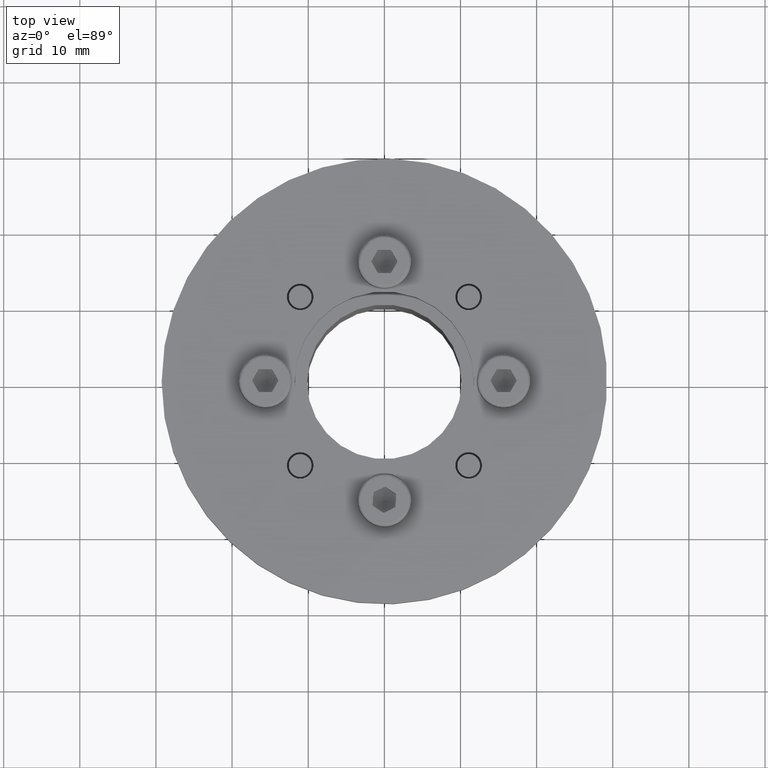
[diagram: clean part render]
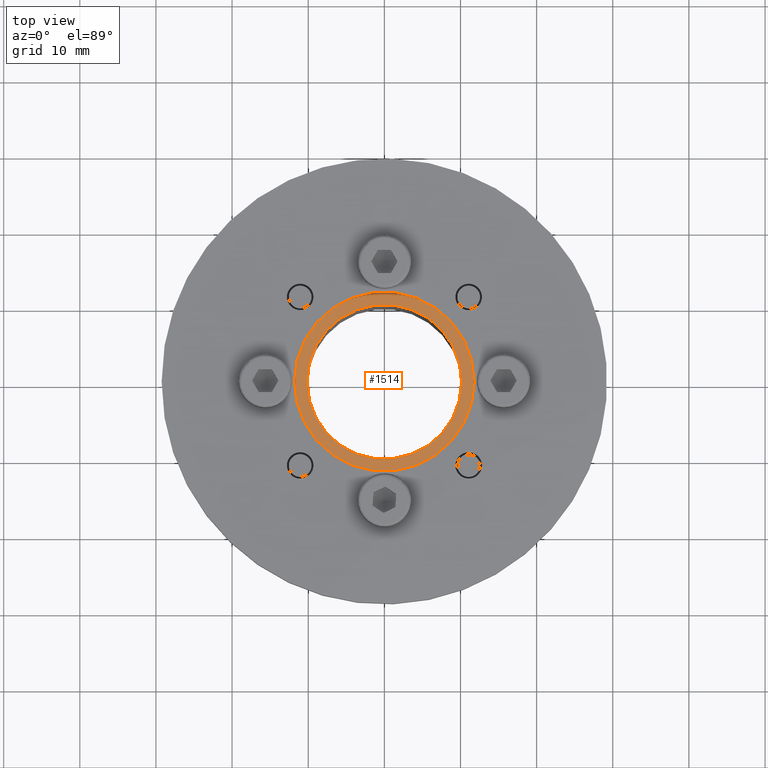
[diagram: same view with one face highlighted and labeled with its STEP entity id]
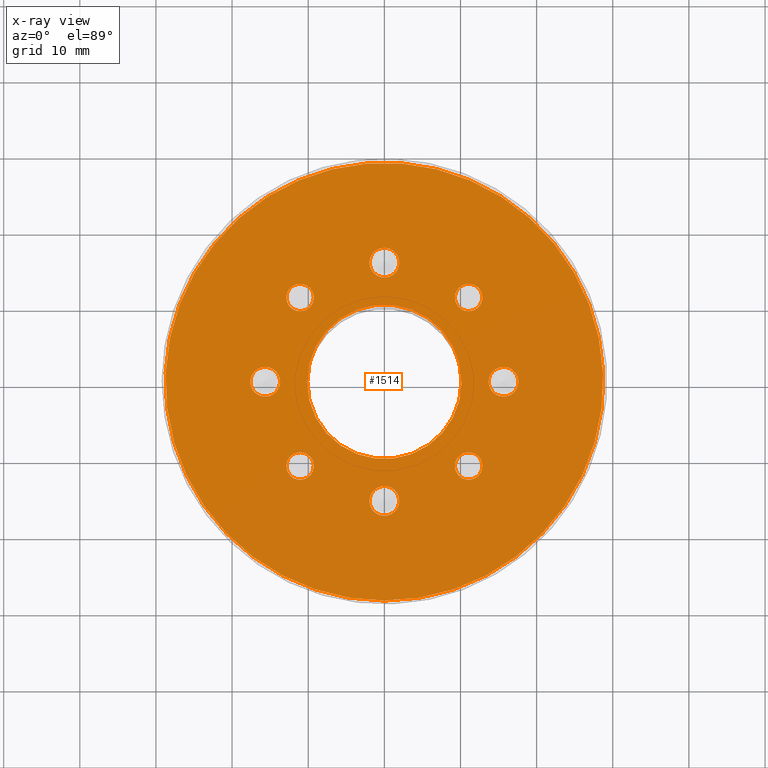
[diagram: x-ray of the same camera — body ghosted, the highlighted face saturated]
A machine part, top view. The second image highlights one B-rep face of the part: STEP entity #1514.
The next image is the same camera in x-ray: the body ghosted, the highlighted face saturated — about 0% of this face is hidden behind the body in this view.
In plain terms, the highlighted planar face has unit normal (0, -0, -1).
Its self-contained STEP definition (entity closure, byte-faithful):
#109=FACE_BOUND('',#412,.T.);
#110=FACE_BOUND('',#413,.T.);
#111=FACE_BOUND('',#414,.T.);
#112=FACE_BOUND('',#415,.T.);
#113=FACE_BOUND('',#416,.T.);
#114=FACE_BOUND('',#417,.T.);
#115=FACE_BOUND('',#418,.T.);
#116=FACE_BOUND('',#419,.T.);
#117=FACE_BOUND('',#420,.T.);
#155=PLANE('',#1748);
#321=FACE_OUTER_BOUND('',#411,.T.);
#411=EDGE_LOOP('',(#1105));
#412=EDGE_LOOP('',(#1106,#1107));
#413=EDGE_LOOP('',(#1108));
#414=EDGE_LOOP('',(#1109));
#415=EDGE_LOOP('',(#1110));
#416=EDGE_LOOP('',(#1111));
#417=EDGE_LOOP('',(#1112));
#418=EDGE_LOOP('',(#1113));
#419=EDGE_LOOP('',(#1114,#1115));
#420=EDGE_LOOP('',(#1116,#1117));
#552=CIRCLE('',#1745,1.8);
#553=CIRCLE('',#1746,1.8);
#555=CIRCLE('',#1749,28.75);
#556=CIRCLE('',#1750,1.8);
#557=CIRCLE('',#1751,1.8);
#558=CIRCLE('',#1752,1.8);
#559=CIRCLE('',#1753,1.95);
#560=CIRCLE('',#1754,1.95);
#561=CIRCLE('',#1755,1.95);
#562=CIRCLE('',#1756,1.95);
#563=CIRCLE('',#1757,10.15);
#564=CIRCLE('',#1758,1.8);
#565=CIRCLE('',#1759,1.8);
#700=VERTEX_POINT('',#2584);
#701=VERTEX_POINT('',#2586);
#702=VERTEX_POINT('',#2591);
#703=VERTEX_POINT('',#2593);
#704=VERTEX_POINT('',#2594);
#705=VERTEX_POINT('',#2597);
#706=VERTEX_POINT('',#2599);
#707=VERTEX_POINT('',#2601);
#708=VERTEX_POINT('',#2603);
#709=VERTEX_POINT('',#2605);
#710=VERTEX_POINT('',#2607);
#711=VERTEX_POINT('',#2609);
#712=VERTEX_POINT('',#2610);
#860=EDGE_CURVE('',#700,#701,#552,.T.);
#861=EDGE_CURVE('',#701,#700,#553,.T.);
#863=EDGE_CURVE('',#702,#702,#555,.T.);
#864=EDGE_CURVE('',#703,#704,#556,.T.);
#865=EDGE_CURVE('',#704,#703,#557,.T.);
#866=EDGE_CURVE('',#705,#705,#558,.T.);
#867=EDGE_CURVE('',#706,#706,#559,.T.);
#868=EDGE_CURVE('',#707,#707,#560,.T.);
#869=EDGE_CURVE('',#708,#708,#561,.T.);
#870=EDGE_CURVE('',#709,#709,#562,.T.);
#871=EDGE_CURVE('',#710,#710,#563,.F.);
#872=EDGE_CURVE('',#711,#712,#564,.T.);
#873=EDGE_CURVE('',#712,#711,#565,.T.);
#1105=ORIENTED_EDGE('',*,*,#863,.T.);
#1106=ORIENTED_EDGE('',*,*,#864,.F.);
#1107=ORIENTED_EDGE('',*,*,#865,.F.);
#1108=ORIENTED_EDGE('',*,*,#866,.F.);
#1109=ORIENTED_EDGE('',*,*,#867,.T.);
#1110=ORIENTED_EDGE('',*,*,#868,.T.);
#1111=ORIENTED_EDGE('',*,*,#869,.T.);
#1112=ORIENTED_EDGE('',*,*,#870,.T.);
#1113=ORIENTED_EDGE('',*,*,#871,.T.);
#1114=ORIENTED_EDGE('',*,*,#872,.F.);
#1115=ORIENTED_EDGE('',*,*,#873,.F.);
#1116=ORIENTED_EDGE('',*,*,#861,.F.);
#1117=ORIENTED_EDGE('',*,*,#860,.F.);
#1514=ADVANCED_FACE('',(#321,#109,#110,#111,#112,#113,#114,#115,#116,#117),
#155,.F.);
#1745=AXIS2_PLACEMENT_3D('',#2587,#2046,#2047);
#1746=AXIS2_PLACEMENT_3D('',#2588,#2048,#2049);
#1748=AXIS2_PLACEMENT_3D('',#2590,#2052,#2053);
#1749=AXIS2_PLACEMENT_3D('',#2592,#2054,#2055);
#1750=AXIS2_PLACEMENT_3D('',#2595,#2056,#2057);
#1751=AXIS2_PLACEMENT_3D('',#2596,#2058,#2059);
#1752=AXIS2_PLACEMENT_3D('',#2598,#2060,#2061);
#1753=AXIS2_PLACEMENT_3D('',#2600,#2062,#2063);
#1754=AXIS2_PLACEMENT_3D('',#2602,#2064,#2065);
#1755=AXIS2_PLACEMENT_3D('',#2604,#2066,#2067);
#1756=AXIS2_PLACEMENT_3D('',#2606,#2068,#2069);
#1757=AXIS2_PLACEMENT_3D('',#2608,#2070,#2071);
#1758=AXIS2_PLACEMENT_3D('',#2611,#2072,#2073);
#1759=AXIS2_PLACEMENT_3D('',#2612,#2074,#2075);
#2046=DIRECTION('center_axis',(0.,0.,1.));
#2047=DIRECTION('ref_axis',(0.,-1.,0.));
#2048=DIRECTION('center_axis',(0.,0.,1.));
#2049=DIRECTION('ref_axis',(0.,-1.,0.));
#2052=DIRECTION('center_axis',(0.,0.,-1.));
#2053=DIRECTION('ref_axis',(-1.,0.,0.));
#2054=DIRECTION('center_axis',(0.,0.,1.));
#2055=DIRECTION('ref_axis',(0.,-1.,-1.83697019872103E-16));
#2056=DIRECTION('center_axis',(0.,0.,1.));
#2057=DIRECTION('ref_axis',(1.,0.,0.));
#2058=DIRECTION('center_axis',(0.,0.,1.));
#2059=DIRECTION('ref_axis',(1.,0.,0.));
#2060=DIRECTION('center_axis',(0.,0.,1.));
#2061=DIRECTION('ref_axis',(-1.,0.,0.));
#2062=DIRECTION('center_axis',(0.,0.,-1.));
#2063=DIRECTION('ref_axis',(1.83697019872103E-16,1.,0.));
#2064=DIRECTION('center_axis',(0.,0.,-1.));
#2065=DIRECTION('ref_axis',(1.,-1.22464679914735E-16,0.));
#2066=DIRECTION('center_axis',(0.,0.,-1.));
#2067=DIRECTION('ref_axis',(-6.12323399573676E-17,-1.,0.));
#2068=DIRECTION('center_axis',(0.,0.,-1.));
#2069=DIRECTION('ref_axis',(-1.,0.,0.));
#2070=DIRECTION('center_axis',(0.,0.,1.));
#2071=DIRECTION('ref_axis',(-1.,0.,0.));
#2072=DIRECTION('center_axis',(0.,0.,1.));
#2073=DIRECTION('ref_axis',(0.,1.,0.));
#2074=DIRECTION('center_axis',(0.,0.,1.));
#2075=DIRECTION('ref_axis',(0.,1.,0.));
#2584=CARTESIAN_POINT('',(-9.26622112556947,-11.0662211255695,35.));
#2586=CARTESIAN_POINT('',(-11.0662211255695,-9.26622112556947,35.));
#2587=CARTESIAN_POINT('Origin',(-11.0662211255695,-11.0662211255695,35.));
#2588=CARTESIAN_POINT('Origin',(-11.0662211255695,-11.0662211255695,35.));
#2590=CARTESIAN_POINT('Origin',(-5.55111512312578E-16,5.55111512312578E-16,
35.));
#2591=CARTESIAN_POINT('',(-3.52085954754864E-15,28.75,35.));
#2592=CARTESIAN_POINT('Origin',(0.,-6.4293956955236E-15,35.));
#2593=CARTESIAN_POINT('',(9.26622112556947,-11.0662211255695,35.));
#2594=CARTESIAN_POINT('',(12.8662211255695,-11.0662211255695,35.));
#2595=CARTESIAN_POINT('Origin',(11.0662211255695,-11.0662211255695,35.));
#2596=CARTESIAN_POINT('Origin',(11.0662211255695,-11.0662211255695,35.));
#2597=CARTESIAN_POINT('',(-9.26622112556947,11.0662211255695,35.));
#2598=CARTESIAN_POINT('Origin',(-11.0662211255695,11.0662211255695,35.));
#2599=CARTESIAN_POINT('',(-4.48454815184377E-15,13.7,35.));
#2600=CARTESIAN_POINT('Origin',(-3.88753283725944E-15,15.65,35.));
#2601=CARTESIAN_POINT('',(13.7,5.32343120925971E-15,35.));
#2602=CARTESIAN_POINT('Origin',(15.65,4.84581895759224E-15,35.));
#2603=CARTESIAN_POINT('',(5.05209124205049E-15,-13.7,35.));
#2604=CARTESIAN_POINT('Origin',(4.69388205329989E-15,-15.65,35.));
#2605=CARTESIAN_POINT('',(-13.7,-5.89097429946643E-15,35.));
#2606=CARTESIAN_POINT('Origin',(-15.65,-5.65216817363269E-15,35.));
#2607=CARTESIAN_POINT('',(10.15,1.79812801344714E-15,35.));
#2608=CARTESIAN_POINT('Origin',(-5.55111512312578E-16,5.55111512312578E-16,
35.));
#2609=CARTESIAN_POINT('',(11.0662211255695,9.26622112556947,35.));
#2610=CARTESIAN_POINT('',(12.8662211255695,11.0662211255695,35.));
#2611=CARTESIAN_POINT('Origin',(11.0662211255695,11.0662211255695,35.));
#2612=CARTESIAN_POINT('Origin',(11.0662211255695,11.0662211255695,35.));